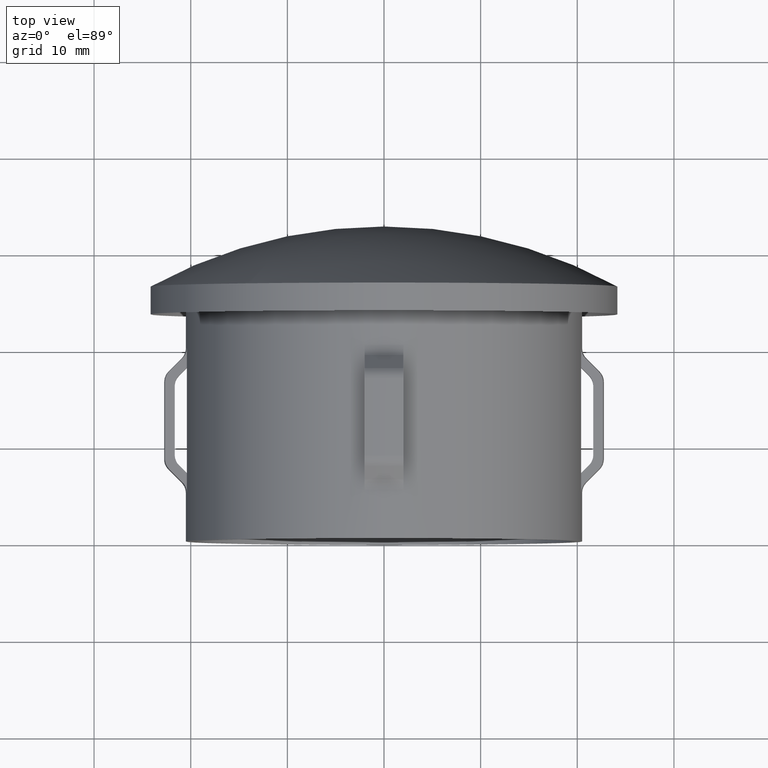
[diagram: clean part render]
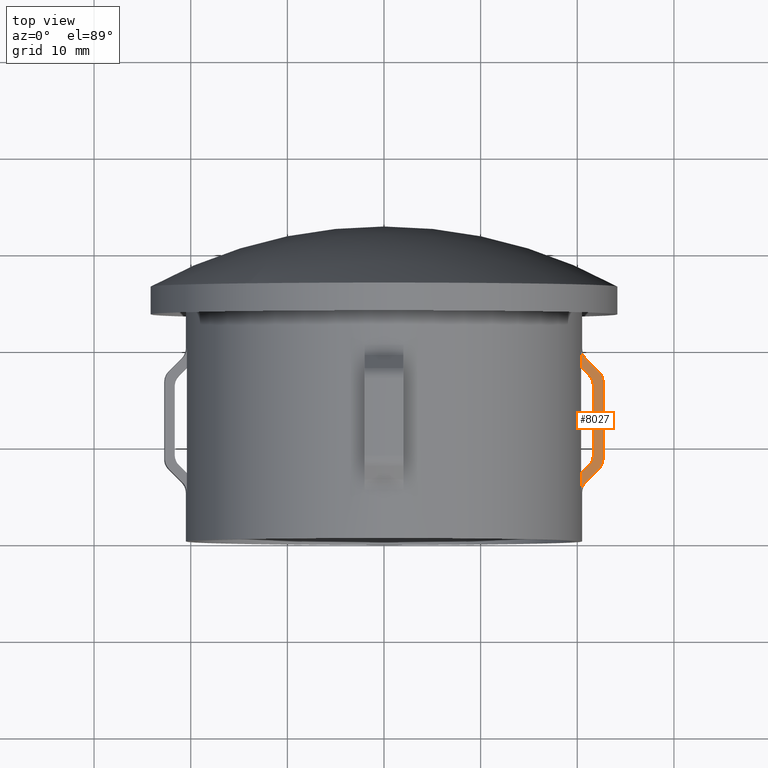
[diagram: same view with one face highlighted and labeled with its STEP entity id]
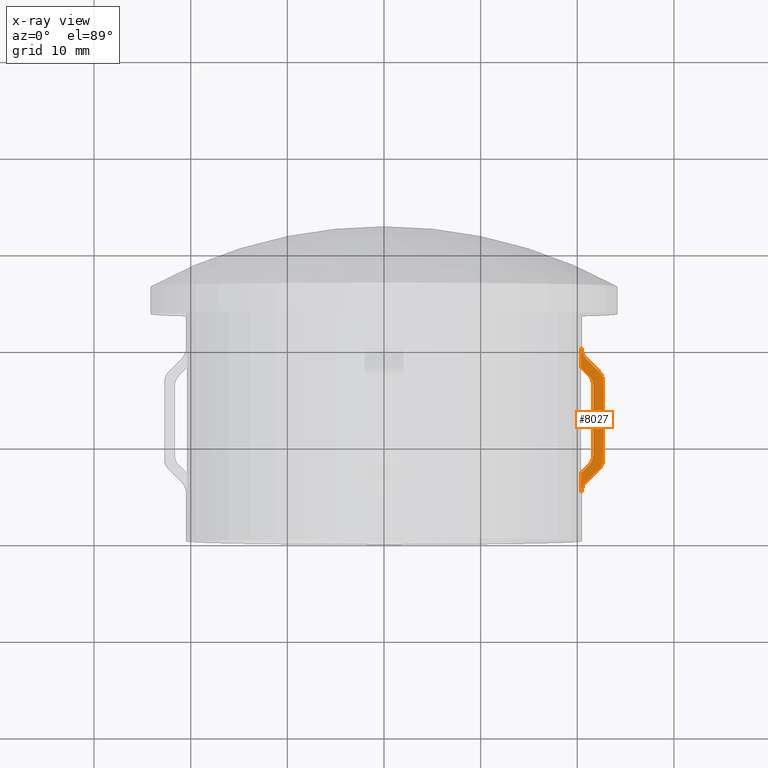
[diagram: x-ray of the same camera — body ghosted, the highlighted face saturated]
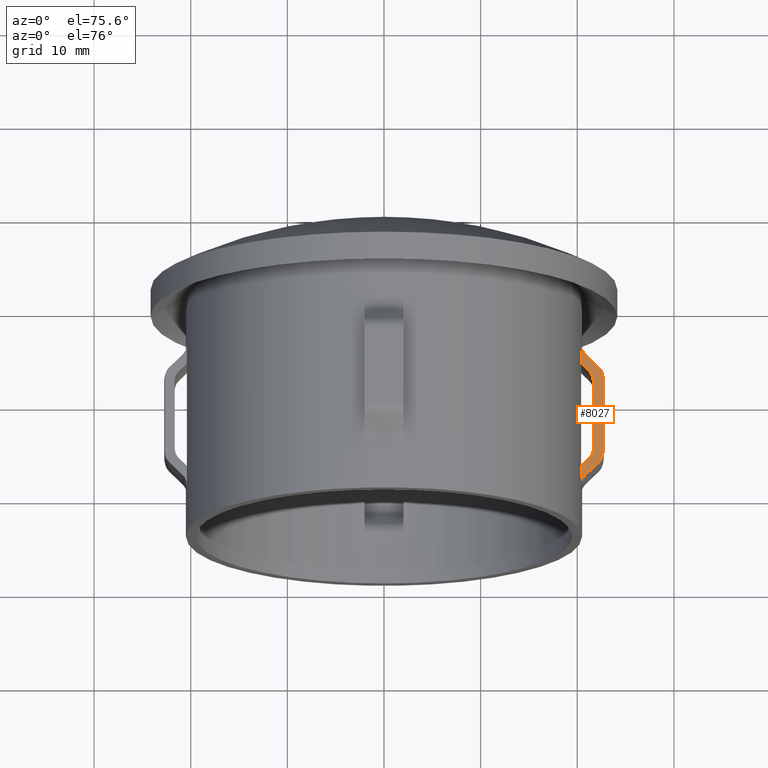
[diagram: same view with one face highlighted and labeled with its STEP entity id]
A machine part, top view. The second image highlights one B-rep face of the part: STEP entity #8027.
The next image is the same camera in x-ray: the body ghosted, the highlighted face saturated — about 0% of this face is hidden behind the body in this view.
A second angle (auxiliary view) of the same face is appended — the face is thin or edge-on in the first view.
In plain terms, the highlighted planar face has unit normal (0, -0, 1).
Its self-contained STEP definition (entity closure, byte-faithful):
#22 = VERTEX_POINT ( 'NONE', #6850 ) ;
#52 = CARTESIAN_POINT ( 'NONE',  ( 20.70522342380307300, 19.07709071892133700, 1.999999999999994900 ) ) ;
#125 = LINE ( 'NONE', #4528, #10342 ) ;
#182 = EDGE_CURVE ( 'NONE', #8349, #22, #1298, .T. ) ;
#233 = B_SPLINE_CURVE_WITH_KNOTS ( 'NONE', 3,
 ( #11051, #13232, #11100, #13287, #718, #12215, #4252, #2952 ),
 .UNSPECIFIED., .F., .F.,
 ( 4, 2, 2, 4 ),
 ( 0.009128291611664604600, 0.009714465693555943800, 0.01000755273450160700, 0.01030063977544726900 ),
 .UNSPECIFIED. ) ;
#547 = CARTESIAN_POINT ( 'NONE',  ( 22.62318409287577500, 8.115845375148282400, 1.999999999999994400 ) ) ;
#586 = EDGE_CURVE ( 'NONE', #14727, #6046, #4840, .T. ) ;
#599 = CARTESIAN_POINT ( 'NONE',  ( 22.35926237560221000, 7.584568097044222400, 1.999999999999994900 ) ) ;
#682 = CARTESIAN_POINT ( 'NONE',  ( 21.78498539532188600, 18.00211543520871900, 1.999999999999994400 ) ) ;
#718 = CARTESIAN_POINT ( 'NONE',  ( 21.45793771639349900, 16.84624992441863600, 1.999999999999994900 ) ) ;
#854 = ORIENTED_EDGE ( 'NONE', *, *, #14038, .T. ) ;
#890 = ORIENTED_EDGE ( 'NONE', *, *, #586, .F. ) ;
#918 = VERTEX_POINT ( 'NONE', #1471 ) ;
#938 = CARTESIAN_POINT ( 'NONE',  ( 22.47140790669731200, 7.750848718991053800, 1.999999999999994400 ) ) ;
#968 = B_SPLINE_CURVE_WITH_KNOTS ( 'NONE', 3,
 ( #10640, #4835, #5894, #7070, #8322, #11635, #8232 ),
 .UNSPECIFIED., .F., .F.,
 ( 4, 3, 4 ),
 ( 0.003052204991603307900, 0.003180430166961619200, 0.004201297012915267500 ),
 .UNSPECIFIED. ) ;
#1298 = LINE ( 'NONE', #11972, #10268 ) ;
#1369 = CARTESIAN_POINT ( 'NONE',  ( 20.40220576310317200, 5.014718625761436700, 1.999999999999994900 ) ) ;
#1387 = CARTESIAN_POINT ( 'NONE',  ( 22.66191739460735700, 16.50735931288072000, 1.999999999999994000 ) ) ;
#1471 = CARTESIAN_POINT ( 'NONE',  ( 20.84360699211362400, 18.93933982822018400, 1.999999999999994900 ) ) ;
#1521 = B_SPLINE_CURVE_WITH_KNOTS ( 'NONE', 3,
 ( #6230, #14237, #13196, #2819, #7350, #682, #12075 ),
 .UNSPECIFIED., .F., .F.,
 ( 4, 3, 4 ),
 ( 0.004396343306202944500, 0.004494426444014910900, 0.006339865655612756900 ),
 .UNSPECIFIED. ) ;
#1523 = EDGE_CURVE ( 'NONE', #11261, #10203, #12367, .T. ) ;
#1692 = VECTOR ( 'NONE', #9867, 1000.000000000000000 ) ;
#1742 = CARTESIAN_POINT ( 'NONE',  ( 20.57707475457031500, 17.79042598295832200, 1.999999999999994900 ) ) ;
#1802 = ORIENTED_EDGE ( 'NONE', *, *, #10107, .F. ) ;
#2102 = EDGE_CURVE ( 'NONE', #918, #11261, #1521, .T. ) ;
#2202 = CARTESIAN_POINT ( 'NONE',  ( 20.71110602943930000, 5.929834406796328700, 1.999999999999994400 ) ) ;
#2431 = B_SPLINE_CURVE_WITH_KNOTS ( 'NONE', 3,
 ( #5143, #7468, #547, #938, #599, #13513 ),
 .UNSPECIFIED., .F., .F.,
 ( 4, 2, 4 ),
 ( 0.008537508476758505100, 0.009123193019095343300, 0.009708877561432179700 ),
 .UNSPECIFIED. ) ;
#2496 = CARTESIAN_POINT ( 'NONE',  ( 20.40220576310316500, 19.90173428581017100, 1.999999999999995300 ) ) ;
#2568 = VERTEX_POINT ( 'NONE', #2591 ) ;
#2591 = CARTESIAN_POINT ( 'NONE',  ( 22.22083610714597800, 7.446699141100896900, 1.999999999999994400 ) ) ;
#2635 = AXIS2_PLACEMENT_3D ( 'NONE', #13656, #5596, #14753 ) ;
#2819 = CARTESIAN_POINT ( 'NONE',  ( 20.91312044881423300, 18.87014313181276000, 1.999999999999994900 ) ) ;
#2916 = DIRECTION ( 'NONE',  ( 2.904862207577519400E-015, 1.000000000000000000, 0.0000000000000000000 ) ) ;
#2942 = CARTESIAN_POINT ( 'NONE',  ( 21.03258113547445900, 17.33701544440574700, 1.999999999999994900 ) ) ;
#2952 = CARTESIAN_POINT ( 'NONE',  ( 21.21660286089840900, 17.15380592228744700, 1.999999999999994900 ) ) ;
#3169 = CARTESIAN_POINT ( 'NONE',  ( 20.40220576310317200, 20.00000000000000000, 1.999999999999994900 ) ) ;
#3206 = CARTESIAN_POINT ( 'NONE',  ( 22.22083610714597800, 7.446699141100896900, 1.999999999999994400 ) ) ;
#3241 = VERTEX_POINT ( 'NONE', #12112 ) ;
#3267 = CARTESIAN_POINT ( 'NONE',  ( 20.40220576310317200, 7.050252531694318300, 1.999999999999994900 ) ) ;
#3295 = CARTESIAN_POINT ( 'NONE',  ( 21.34908356169729200, 6.578558559845501600, 1.999999999999994900 ) ) ;
#3371 = CARTESIAN_POINT ( 'NONE',  ( 21.35645116154480000, 8.000143765846953400, 1.999999999999995300 ) ) ;
#3460 = CARTESIAN_POINT ( 'NONE',  ( 20.40220576310317200, 5.014718625761436700, 1.999999999999994900 ) ) ;
#3821 = CARTESIAN_POINT ( 'NONE',  ( 21.21660286089843300, 7.860912703473975000, 1.999999999999994900 ) ) ;
#3853 = LINE ( 'NONE', #6193, #1692 ) ;
#4252 = CARTESIAN_POINT ( 'NONE',  ( 21.28616650510678800, 17.08454930607619100, 1.999999999999994900 ) ) ;
#4343 = CARTESIAN_POINT ( 'NONE',  ( 20.91312044881423700, 6.144575493948676300, 1.999999999999994900 ) ) ;
#4523 = CARTESIAN_POINT ( 'NONE',  ( 21.58082483954190100, 8.438045186904297200, 1.999999999999994400 ) ) ;
#4528 = CARTESIAN_POINT ( 'NONE',  ( 22.66191739460735700, 20.00000000000000000, 1.999999999999994000 ) ) ;
#4543 = ORIENTED_EDGE ( 'NONE', *, *, #6608, .T. ) ;
#4581 = CARTESIAN_POINT ( 'NONE',  ( 20.84360699211362800, 6.075378797541256800, 1.999999999999994900 ) ) ;
#4587 = VERTEX_POINT ( 'NONE', #4581 ) ;
#4603 = EDGE_LOOP ( 'NONE', ( #4543, #890, #14241, #7835, #8100, #11114, #854, #12067, #12002, #13165, #1802, #7036, #12417, #12689 ) ) ;
#4632 = VERTEX_POINT ( 'NONE', #1369 ) ;
#4835 = CARTESIAN_POINT ( 'NONE',  ( 20.43250090231388700, 7.080403149440464900, 1.999999999999994900 ) ) ;
#4840 = B_SPLINE_CURVE_WITH_KNOTS ( 'NONE', 3,
 ( #13174, #2942, #10951, #5250, #1742, #14264, #13274 ),
 .UNSPECIFIED., .F., .F.,
 ( 4, 3, 4 ),
 ( 0.002401413104325928800, 0.003180430114856571000, 0.003550505141012631500 ),
 .UNSPECIFIED. ) ;
#5036 = VERTEX_POINT ( 'NONE', #3267 ) ;
#5143 = CARTESIAN_POINT ( 'NONE',  ( 22.66191739460735700, 8.507359312880781800, 1.999999999999994000 ) ) ;
#5188 = CARTESIAN_POINT ( 'NONE',  ( 21.21660286089840900, 17.15380592228744700, 1.999999999999994900 ) ) ;
#5250 = CARTESIAN_POINT ( 'NONE',  ( 20.66450535715419400, 17.70340201594606500, 1.999999999999994900 ) ) ;
#5469 = CARTESIAN_POINT ( 'NONE',  ( 20.84360699211362800, 6.075378797541256800, 1.999999999999994900 ) ) ;
#5537 = CARTESIAN_POINT ( 'NONE',  ( 21.65785077056353500, 8.921572875253817300, 1.999999999999994400 ) ) ;
#5587 = CARTESIAN_POINT ( 'NONE',  ( 22.66191739460735700, 16.50735931288072000, 1.999999999999994000 ) ) ;
#5596 = DIRECTION ( 'NONE',  ( 3.358301057634777300E-016, -8.225465281611333200E-033, 1.000000000000000000 ) ) ;
#5799 = CARTESIAN_POINT ( 'NONE',  ( 20.59289333808239400, 19.24337864287313900, 1.999999999999994900 ) ) ;
#5894 = CARTESIAN_POINT ( 'NONE',  ( 20.46279572193694600, 7.110554088309465100, 1.999999999999994900 ) ) ;
#6046 = VERTEX_POINT ( 'NONE', #9860 ) ;
#6193 = CARTESIAN_POINT ( 'NONE',  ( 20.40220576310317200, 20.00000000000000000, 1.999999999999994900 ) ) ;
#6230 = CARTESIAN_POINT ( 'NONE',  ( 20.84360699211362400, 18.93933982822018400, 1.999999999999994900 ) ) ;
#6494 = CARTESIAN_POINT ( 'NONE',  ( 22.22083610714597800, 17.56801948466054200, 1.999999999999994400 ) ) ;
#6608 = EDGE_CURVE ( 'NONE', #3241, #6046, #12292, .T. ) ;
#6625 = CARTESIAN_POINT ( 'NONE',  ( 20.77442059055724900, 6.006508710180805000, 1.999999999999995300 ) ) ;
#6626 = EDGE_CURVE ( 'NONE', #4587, #4632, #6762, .T. ) ;
#6685 = CARTESIAN_POINT ( 'NONE',  ( 21.65785077056353500, 8.921572875253817300, 1.999999999999994400 ) ) ;
#6762 = B_SPLINE_CURVE_WITH_KNOTS ( 'NONE', 3,
 ( #5469, #6625, #2202, #14773, #10227, #7951, #13781, #3460 ),
 .UNSPECIFIED., .F., .F.,
 ( 4, 2, 2, 4 ),
 ( 0.008371280253840825100, 0.008664066613654319800, 0.008956852973467814600, 0.009542425693094802200 ),
 .UNSPECIFIED. ) ;
#6850 = CARTESIAN_POINT ( 'NONE',  ( 21.65785077056354200, 16.09314575050762400, 1.999999999999994400 ) ) ;
#6916 = CARTESIAN_POINT ( 'NONE',  ( 20.41206944872255800, 19.80280675609174800, 1.999999999999994900 ) ) ;
#7027 = CARTESIAN_POINT ( 'NONE',  ( 20.40220576310317200, 20.00000000000000000, 1.999999999999994900 ) ) ;
#7036 = ORIENTED_EDGE ( 'NONE', *, *, #1523, .F. ) ;
#7070 = CARTESIAN_POINT ( 'NONE',  ( 20.49309022617561700, 7.140705344057838700, 1.999999999999994900 ) ) ;
#7350 = CARTESIAN_POINT ( 'NONE',  ( 21.34908356169728800, 18.43616006591593500, 1.999999999999994900 ) ) ;
#7468 = CARTESIAN_POINT ( 'NONE',  ( 22.66191739460719400, 8.310355224789837800, 1.999999999999994000 ) ) ;
#7600 = B_SPLINE_CURVE_WITH_KNOTS ( 'NONE', 3,
 ( #7963, #3371, #13688, #4523, #14741, #8972, #12436, #6685 ),
 .UNSPECIFIED., .F., .F.,
 ( 4, 2, 2, 4 ),
 ( 0.009173001103736842100, 0.009759328643642867600, 0.01005249241359588300, 0.01034565618354889800 ),
 .UNSPECIFIED. ) ;
#7746 = CARTESIAN_POINT ( 'NONE',  ( 20.84360699211362800, 6.075378797541256800, 1.999999999999994900 ) ) ;
#7835 = ORIENTED_EDGE ( 'NONE', *, *, #182, .F. ) ;
#7951 = CARTESIAN_POINT ( 'NONE',  ( 20.44217957024215300, 5.409761750437871400, 1.999999999999995300 ) ) ;
#7963 = CARTESIAN_POINT ( 'NONE',  ( 21.21660286089843300, 7.860912703473975000, 1.999999999999994900 ) ) ;
#8027 = ADVANCED_FACE ( 'NONE', ( #12791 ), #13610, .T. ) ;
#8061 = CARTESIAN_POINT ( 'NONE',  ( 22.66191739460735700, 8.507359312880781800, 1.999999999999994000 ) ) ;
#8092 = CARTESIAN_POINT ( 'NONE',  ( 20.84360699211362400, 18.93933982822018400, 1.999999999999994900 ) ) ;
#8100 = ORIENTED_EDGE ( 'NONE', *, *, #10471, .F. ) ;
#8232 = CARTESIAN_POINT ( 'NONE',  ( 21.21660286089843300, 7.860912703473975000, 1.999999999999994900 ) ) ;
#8322 = CARTESIAN_POINT ( 'NONE',  ( 20.73428041770117900, 7.380755060382388600, 1.999999999999994900 ) ) ;
#8349 = VERTEX_POINT ( 'NONE', #5537 ) ;
#8565 = VECTOR ( 'NONE', #9004, 1000.000000000000000 ) ;
#8942 = EDGE_CURVE ( 'NONE', #22, #14727, #233, .T. ) ;
#8972 = CARTESIAN_POINT ( 'NONE',  ( 21.64819746106335100, 8.725776602241177600, 1.999999999999994000 ) ) ;
#9004 = DIRECTION ( 'NONE',  ( -2.449293598294745400E-017, -1.000000000000000000, -0.0000000000000000000 ) ) ;
#9042 = EDGE_CURVE ( 'NONE', #2568, #4587, #12615, .T. ) ;
#9219 = VERTEX_POINT ( 'NONE', #3821 ) ;
#9485 = CARTESIAN_POINT ( 'NONE',  ( 22.22083610714597800, 17.56801948466054200, 1.999999999999994400 ) ) ;
#9790 = EDGE_CURVE ( 'NONE', #3241, #918, #10233, .T. ) ;
#9860 = CARTESIAN_POINT ( 'NONE',  ( 20.40220576310317200, 17.96446609406720900, 1.999999999999994900 ) ) ;
#9867 = DIRECTION ( 'NONE',  ( -2.449293598294745400E-017, -1.000000000000000000, -0.0000000000000000000 ) ) ;
#10074 = EDGE_CURVE ( 'NONE', #11363, #2568, #2431, .T. ) ;
#10107 = EDGE_CURVE ( 'NONE', #10203, #11363, #125, .T. ) ;
#10176 = CARTESIAN_POINT ( 'NONE',  ( 21.78498539532188300, 7.012603190552721500, 1.999999999999994400 ) ) ;
#10203 = VERTEX_POINT ( 'NONE', #5587 ) ;
#10227 = CARTESIAN_POINT ( 'NONE',  ( 20.55538203870449400, 5.680815094391777900, 1.999999999999995300 ) ) ;
#10233 = B_SPLINE_CURVE_WITH_KNOTS ( 'NONE', 3,
 ( #7027, #2496, #6916, #10508, #11644, #5799, #52, #8092 ),
 .UNSPECIFIED., .F., .F.,
 ( 4, 2, 2, 4 ),
 ( 0.008509443781205204900, 0.008802269037219475500, 0.009095094293233746100, 0.009680744805262287200 ),
 .UNSPECIFIED. ) ;
#10268 = VECTOR ( 'NONE', #2916, 1000.000000000000000 ) ;
#10342 = VECTOR ( 'NONE', #12545, 1000.000000000000000 ) ;
#10471 = EDGE_CURVE ( 'NONE', #9219, #8349, #7600, .T. ) ;
#10508 = CARTESIAN_POINT ( 'NONE',  ( 20.45038570081279500, 19.61130445110917400, 1.999999999999994900 ) ) ;
#10640 = CARTESIAN_POINT ( 'NONE',  ( 20.40220576310317200, 7.050252531694318300, 1.999999999999994900 ) ) ;
#10650 = CARTESIAN_POINT ( 'NONE',  ( 22.47115701120889100, 17.26426614596954300, 1.999999999999994400 ) ) ;
#10951 = CARTESIAN_POINT ( 'NONE',  ( 20.84854892013907300, 17.52021443081362800, 1.999999999999994900 ) ) ;
#11051 = CARTESIAN_POINT ( 'NONE',  ( 21.65785077056354200, 16.09314575050762400, 1.999999999999994400 ) ) ;
#11100 = CARTESIAN_POINT ( 'NONE',  ( 21.61801323809700600, 16.48764408892261500, 1.999999999999994400 ) ) ;
#11114 = ORIENTED_EDGE ( 'NONE', *, *, #12014, .F. ) ;
#11261 = VERTEX_POINT ( 'NONE', #6494 ) ;
#11363 = VERTEX_POINT ( 'NONE', #8061 ) ;
#11635 = CARTESIAN_POINT ( 'NONE',  ( 20.97545064178185500, 7.620824840368016800, 1.999999999999994900 ) ) ;
#11644 = CARTESIAN_POINT ( 'NONE',  ( 20.47882990030001000, 19.51756015860038200, 1.999999999999994900 ) ) ;
#11972 = CARTESIAN_POINT ( 'NONE',  ( 21.65785077056359900, 30.09999999999994100, 1.999999999999994400 ) ) ;
#12002 = ORIENTED_EDGE ( 'NONE', *, *, #9042, .F. ) ;
#12014 = EDGE_CURVE ( 'NONE', #5036, #9219, #968, .T. ) ;
#12067 = ORIENTED_EDGE ( 'NONE', *, *, #6626, .F. ) ;
#12075 = CARTESIAN_POINT ( 'NONE',  ( 22.22083610714597800, 17.56801948466054200, 1.999999999999994400 ) ) ;
#12112 = CARTESIAN_POINT ( 'NONE',  ( 20.40220576310317200, 20.00000000000000000, 1.999999999999994900 ) ) ;
#12215 = CARTESIAN_POINT ( 'NONE',  ( 21.34835540812163800, 17.00919439343560700, 1.999999999999994400 ) ) ;
#12292 = LINE ( 'NONE', #3169, #8565 ) ;
#12367 = B_SPLINE_CURVE_WITH_KNOTS ( 'NONE', 3,
 ( #9485, #12859, #10650, #12705, #13864, #1387 ),
 .UNSPECIFIED., .F., .F.,
 ( 4, 2, 4 ),
 ( 0.008548706479392908700, 0.009134532108197372000, 0.009720357737001835200 ),
 .UNSPECIFIED. ) ;
#12410 = CARTESIAN_POINT ( 'NONE',  ( 20.88994947086401100, 6.121509753399737800, 1.999999999999994900 ) ) ;
#12417 = ORIENTED_EDGE ( 'NONE', *, *, #2102, .F. ) ;
#12436 = CARTESIAN_POINT ( 'NONE',  ( 21.65785077056355200, 8.823055726104057000, 1.999999999999995300 ) ) ;
#12545 = DIRECTION ( 'NONE',  ( -2.449293598294745400E-017, -1.000000000000000000, -0.0000000000000000000 ) ) ;
#12615 = B_SPLINE_CURVE_WITH_KNOTS ( 'NONE', 3,
 ( #3206, #10176, #3295, #4343, #12410, #13434, #7746 ),
 .UNSPECIFIED., .F., .F.,
 ( 4, 3, 4 ),
 ( 0.002648986992580329400, 0.004494426273991030500, 0.004592509415513475000 ),
 .UNSPECIFIED. ) ;
#12689 = ORIENTED_EDGE ( 'NONE', *, *, #9790, .F. ) ;
#12705 = CARTESIAN_POINT ( 'NONE',  ( 22.62297271921368800, 16.89958806233798300, 1.999999999999994400 ) ) ;
#12791 = FACE_OUTER_BOUND ( 'NONE', #4603, .T. ) ;
#12859 = CARTESIAN_POINT ( 'NONE',  ( 22.36069470489098200, 17.42872396607262400, 1.999999999999994400 ) ) ;
#13165 = ORIENTED_EDGE ( 'NONE', *, *, #10074, .F. ) ;
#13174 = CARTESIAN_POINT ( 'NONE',  ( 21.21660286089840900, 17.15380592228744700, 1.999999999999994900 ) ) ;
#13196 = CARTESIAN_POINT ( 'NONE',  ( 20.88994947086400700, 18.89320887236169700, 1.999999999999994900 ) ) ;
#13232 = CARTESIAN_POINT ( 'NONE',  ( 21.65785077056354500, 16.29090730707211100, 1.999999999999994400 ) ) ;
#13274 = CARTESIAN_POINT ( 'NONE',  ( 20.40220576310317200, 17.96446609406720900, 1.999999999999994900 ) ) ;
#13287 = CARTESIAN_POINT ( 'NONE',  ( 21.50515582855071300, 16.75839936802216500, 1.999999999999994000 ) ) ;
#13434 = CARTESIAN_POINT ( 'NONE',  ( 20.86677831920771800, 6.098444187348055000, 1.999999999999994900 ) ) ;
#13513 = CARTESIAN_POINT ( 'NONE',  ( 22.22083610714597800, 7.446699141100896900, 1.999999999999994400 ) ) ;
#13610 = PLANE ( 'NONE',  #2635 ) ;
#13656 = CARTESIAN_POINT ( 'NONE',  ( 1.161518931185905200E-015, 20.00000000000000000, 2.000000000000001800 ) ) ;
#13688 = CARTESIAN_POINT ( 'NONE',  ( 21.46794898791228700, 8.166681752869436700, 1.999999999999994000 ) ) ;
#13781 = CARTESIAN_POINT ( 'NONE',  ( 20.40220576310314400, 5.210409835604880700, 1.999999999999994900 ) ) ;
#13864 = CARTESIAN_POINT ( 'NONE',  ( 22.66191739460718700, 16.70284708308863800, 1.999999999999994000 ) ) ;
#14038 = EDGE_CURVE ( 'NONE', #5036, #4632, #3853, .T. ) ;
#14237 = CARTESIAN_POINT ( 'NONE',  ( 20.86677831920771500, 18.91627443841338200, 1.999999999999994900 ) ) ;
#14241 = ORIENTED_EDGE ( 'NONE', *, *, #8942, .F. ) ;
#14264 = CARTESIAN_POINT ( 'NONE',  ( 20.48964158968350400, 17.87744737577657600, 1.999999999999994900 ) ) ;
#14727 = VERTEX_POINT ( 'NONE', #5188 ) ;
#14741 = CARTESIAN_POINT ( 'NONE',  ( 21.60992406000934500, 8.533650821411132600, 1.999999999999995300 ) ) ;
#14753 = DIRECTION ( 'NONE',  ( 1.000000000000000000, 0.0000000000000000000, -3.358301057634777300E-016 ) ) ;
#14773 = CARTESIAN_POINT ( 'NONE',  ( 20.60159769045118600, 5.766771221952182300, 1.999999999999994900 ) ) ;